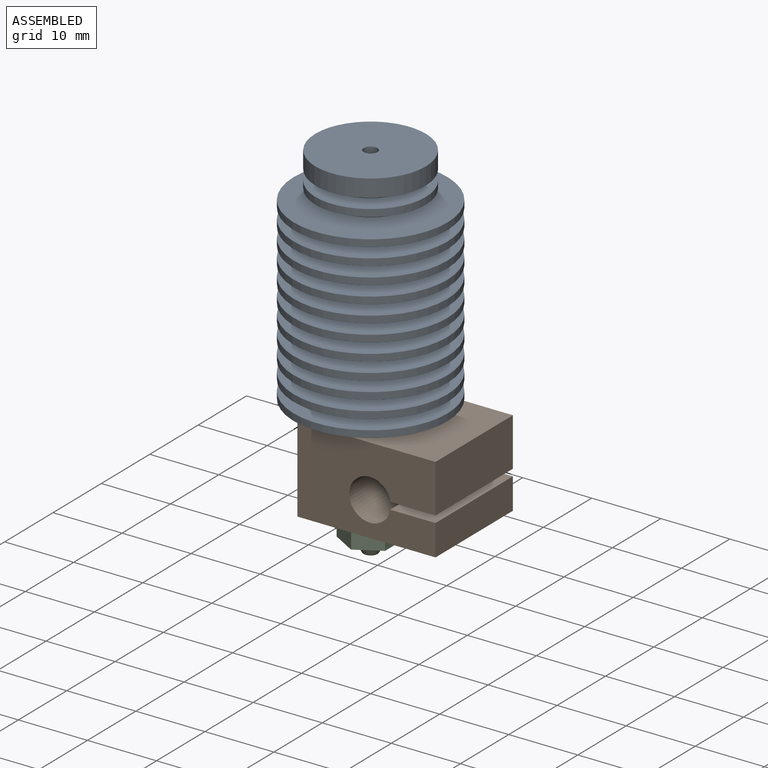
[diagram: assembled view]
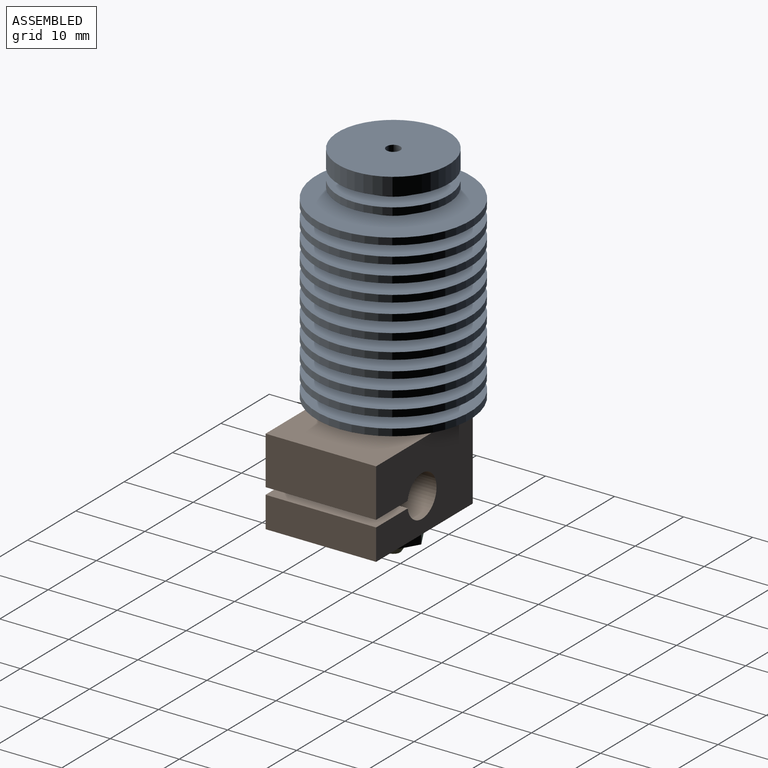
[diagram: assembled view, second angle]
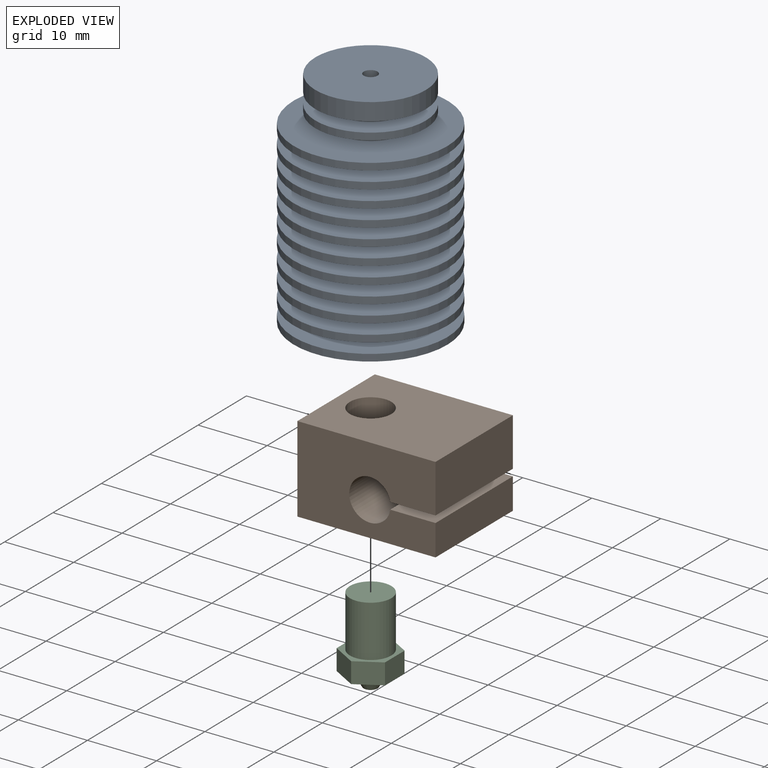
[diagram: exploded view]
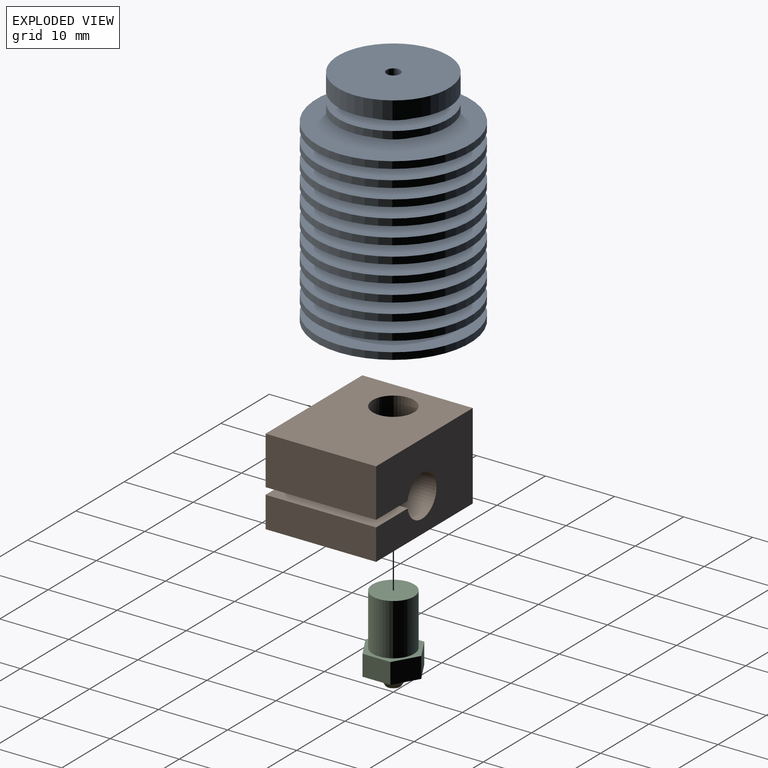
[diagram: exploded view, second angle]
ASSEMBLY  parts=3 mates=2
PART A: 58 faces, bbox 22.3x22.3x33.8 mm
  f0: cylinder r=5mm len=10mm, axis (0,0,-1), area 47.1mm2, adj f54,f55
  f1: cylinder r=5mm len=10mm, axis (0,0,-1), area 47.1mm2, adj f51,f52
  f2: cylinder r=5mm len=10mm, axis (0,0,-1), area 47.1mm2, adj f48,f49
  f3: cylinder r=5mm len=10mm, axis (0,0,-1), area 47.1mm2, adj f45,f46
  f4: cylinder r=5mm len=10mm, axis (0,0,-1), area 47.1mm2, adj f42,f43
  f5: cylinder r=5mm len=10mm, axis (0,0,-1), area 47.1mm2, adj f39,f40
  f6: cylinder r=5mm len=10mm, axis (0,0,-1), area 47.1mm2, adj f36,f37
  f7: cylinder r=5mm len=10mm, axis (0,0,-1), area 47.1mm2, adj f33,f34
  f8: cylinder r=5mm len=10mm, axis (0,0,-1), area 47.1mm2, adj f30,f31
  f9: plane 16x16mm, normal (0,0,1), area 197.9mm2, adj f10,f28
  f10: cylinder r=1mm len=12mm, axis (0,0,-1), area 75.4mm2, adj f9,f11
  f11: plane 6x6mm, normal (0,0,-1), area 25.1mm2, adj f10,f12
  f12: cylinder r=3mm len=20.5mm, axis (0,0,-1), area 386.4mm2, adj f11,f13
  f13: plane 6x6mm, normal (0,0,1), area 23.3mm2, adj f12,f14
  f14: cylinder r=1.26mm len=2.52mm, axis (0,0,-1), area 9.9mm2, adj f13,f15
  f15: plane 9.11x9.11mm, normal (0,0,-1), area 60.2mm2, adj f14,f16
  f16: cylinder r=4.56mm len=9.11mm, axis (0,0,-1), area 35.8mm2, adj f15,f17
  f17: plane 22.25x22.25mm, normal (0,0,-1), area 323.6mm2, adj f16,f29
  f18: cylinder r=5mm len=10mm, axis (0,0,-1), area 47.1mm2, adj f19,f57
  f19: plane 22.25x22.25mm, normal (0,0,-1), area 310.3mm2, adj f18,f20
  f20: cylinder r=11.12mm len=22.25mm, axis (0,0,-1), area 69.9mm2, adj f19,f21
  f21: plane 22.25x22.25mm, normal (0,0,1), area 310.3mm2, adj f20,f22
  f22: cylinder r=5mm len=10mm, axis (0,0,-1), area 47.1mm2, adj f21,f23
  f23: plane 16x16mm, normal (0,0,-1), area 122.5mm2, adj f22,f24
  f24: cylinder r=8mm len=16mm, axis (0,0,-1), area 50.3mm2, adj f23,f25
  f25: plane 16x16mm, normal (0,0,1), area 122.5mm2, adj f24,f26
  f26: cylinder r=5mm len=10mm, axis (0,0,-1), area 47.1mm2, adj f25,f27
  f27: plane 16x16mm, normal (0,0,-1), area 122.5mm2, adj f26,f28
  f28: cylinder r=8mm len=16mm, axis (0,0,-1), area 125.7mm2, adj f9,f27
  f29: cylinder r=11.12mm len=22.25mm, axis (0,0,1), area 69.9mm2, adj f17,f30
  f30: plane 22.25x22.25mm, normal (0,0,1), area 310.3mm2, adj f8,f29
  f31: plane 22.25x22.25mm, normal (0,0,-1), area 310.3mm2, adj f8,f32
  f32: cylinder r=11.12mm len=22.25mm, axis (0,0,1), area 69.9mm2, adj f31,f33
  f33: plane 22.25x22.25mm, normal (0,0,1), area 310.3mm2, adj f7,f32
  f34: plane 22.25x22.25mm, normal (0,0,-1), area 310.3mm2, adj f7,f35
  f35: cylinder r=11.12mm len=22.25mm, axis (0,0,1), area 69.9mm2, adj f34,f36
  f36: plane 22.25x22.25mm, normal (0,0,1), area 310.3mm2, adj f6,f35
  f37: plane 22.25x22.25mm, normal (0,0,-1), area 310.3mm2, adj f6,f38
  f38: cylinder r=11.12mm len=22.25mm, axis (0,0,1), area 69.9mm2, adj f37,f39
  f39: plane 22.25x22.25mm, normal (0,0,1), area 310.3mm2, adj f5,f38
  f40: plane 22.25x22.25mm, normal (0,0,-1), area 310.3mm2, adj f5,f41
  f41: cylinder r=11.12mm len=22.25mm, axis (0,0,1), area 69.9mm2, adj f40,f42
  f42: plane 22.25x22.25mm, normal (0,0,1), area 310.3mm2, adj f4,f41
  f43: plane 22.25x22.25mm, normal (0,0,-1), area 310.3mm2, adj f4,f44
  f44: cylinder r=11.12mm len=22.25mm, axis (0,0,1), area 69.9mm2, adj f43,f45
  f45: plane 22.25x22.25mm, normal (0,0,1), area 310.3mm2, adj f3,f44
  f46: plane 22.25x22.25mm, normal (0,0,-1), area 310.3mm2, adj f3,f47
  f47: cylinder r=11.12mm len=22.25mm, axis (0,0,1), area 69.9mm2, adj f46,f48
  f48: plane 22.25x22.25mm, normal (0,0,1), area 310.3mm2, adj f2,f47
  f49: plane 22.25x22.25mm, normal (0,0,-1), area 310.3mm2, adj f2,f50
  f50: cylinder r=11.12mm len=22.25mm, axis (0,0,1), area 69.9mm2, adj f49,f51
  f51: plane 22.25x22.25mm, normal (0,0,1), area 310.3mm2, adj f1,f50
  f52: plane 22.25x22.25mm, normal (0,0,-1), area 310.3mm2, adj f1,f53
  f53: cylinder r=11.12mm len=22.25mm, axis (0,0,1), area 69.9mm2, adj f52,f54
  f54: plane 22.25x22.25mm, normal (0,0,1), area 310.3mm2, adj f0,f53
  f55: plane 22.25x22.25mm, normal (0,0,-1), area 310.3mm2, adj f0,f56
  f56: cylinder r=11.12mm len=22.25mm, axis (0,0,1), area 69.9mm2, adj f55,f57
  f57: plane 22.25x22.25mm, normal (0,0,1), area 310.3mm2, adj f18,f56
PART B: 11 faces, bbox 20x16x12.5 mm
  f0: plane 16x6.54mm, normal (0,0,1), area 104.7mm2, adj f1,f7,f8,f9
  f1: plane 16x4.5mm, normal (-1,0,0), area 72mm2, adj f0,f2,f8,f9
  f2: plane 20x16mm, normal (0,0,-1), area 291.7mm2, adj f1,f3,f8,f9,f10
  f3: plane 16x12.5mm, normal (1,0,0), area 200mm2, adj f2,f4,f8,f9
  f4: plane 20x16mm, normal (0,0,1), area 291.7mm2, adj f3,f5,f8,f9,f10
  f5: plane 16x7mm, normal (-1,0,0), area 112mm2, adj f4,f6,f8,f9
  f6: plane 16x6.54mm, normal (0,0,-1), area 104.7mm2, adj f5,f7,f8,f9
  f7: cylinder r=3mm len=16mm, axis (0,1,0), area 276.3mm2, adj f0,f6,f8,f9,f10
  f8: plane 20x12.5mm, normal (0,-1,0), area 215.2mm2, adj f0,f1,f2,f3,f4,f5,f6,f7
  f9: plane 20x12.5mm, normal (0,1,0), area 215.2mm2, adj f0,f1,f2,f3,f4,f5,f6,f7
  f10: cylinder r=3mm len=12.5mm, axis (0,0,-1), area 226.4mm2, adj f2,f4,f7
PART C: 14 faces, bbox 7x8.1x12.4 mm
  f0: cylinder r=3mm len=7.5mm, axis (0,0,1), area 141.4mm2, adj f1,f9
  f1: plane 6x6mm, normal (0,0,1), area 28.3mm2, adj f0
  f2: plane 4.04x3mm, normal (-1,0,0), area 12.1mm2, adj f3,f7,f8,f9
  f3: plane 3.5x3mm, normal (-0.5,0.87,0), area 12.1mm2, adj f2,f4,f8,f9
  f4: plane 3.5x3mm, normal (0.5,0.87,0), area 12.1mm2, adj f3,f5,f8,f9
  f5: plane 4.04x3mm, normal (1,0,0), area 12.1mm2, adj f4,f6,f8,f9
  f6: plane 3.5x3mm, normal (0.5,-0.87,0), area 12.1mm2, adj f5,f7,f8,f9
  f7: plane 3.5x3mm, normal (-0.5,-0.87,0), area 12.1mm2, adj f2,f6,f8,f9
  f8: plane 8.08x7mm, normal (0,0,-1), area 28.2mm2, adj f2,f3,f4,f5,f6,f7,f12
  f9: plane 8.08x7mm, normal (0,0,1), area 14.2mm2, adj f0,f2,f3,f4,f5,f6,f7
  f10: plane 2x2mm, normal (0,0,-1), area 3mm2, adj f11,f12
  f11: cylinder r=0.2mm len=1.85mm, axis (0,0,1), area 2.3mm2, adj f10,f13
  f12: cone r=2.12mm half-angle=31.3deg, axis (0,0,1), area 21.3mm2, adj f8,f10
  f13: plane 0.4x0.4mm, normal (0,0,-1), area 0.1mm2, adj f11
PLACE A at identity fixed
PLACE B rot(axis=(0,0,1),180deg) t=(0,0,0)mm
PLACE C rot(axis=(0,0,1),180deg) t=(0,0,0)mm
MATE fastened B.f10 <-> C.f0  axis (0,0,-1) through (0,0,-46.25)mm
MATE fastened B.f10 <-> A.f0  axis (0,0,1) through (0,0,-33.75)mm
